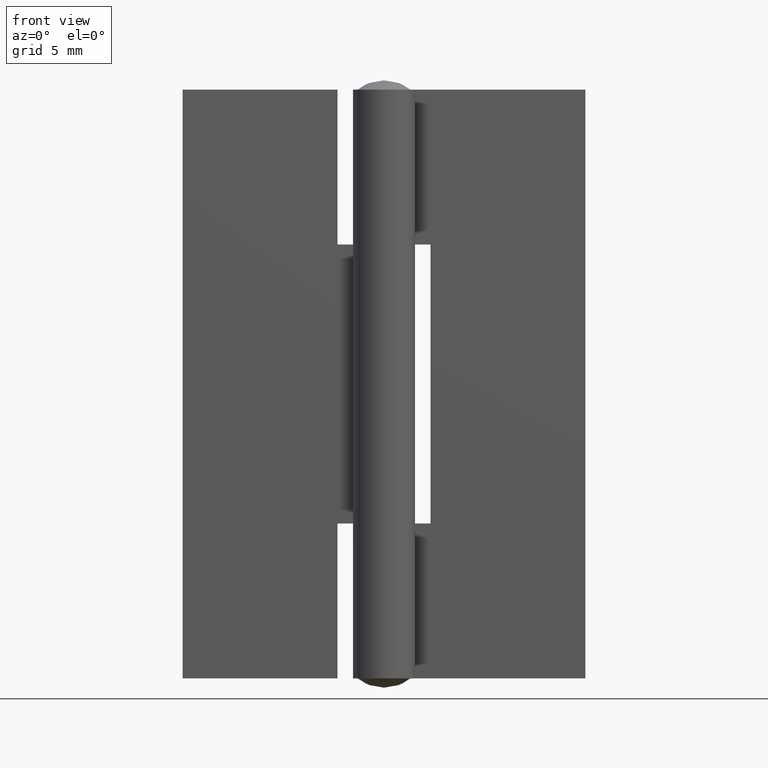
[diagram: clean part render]
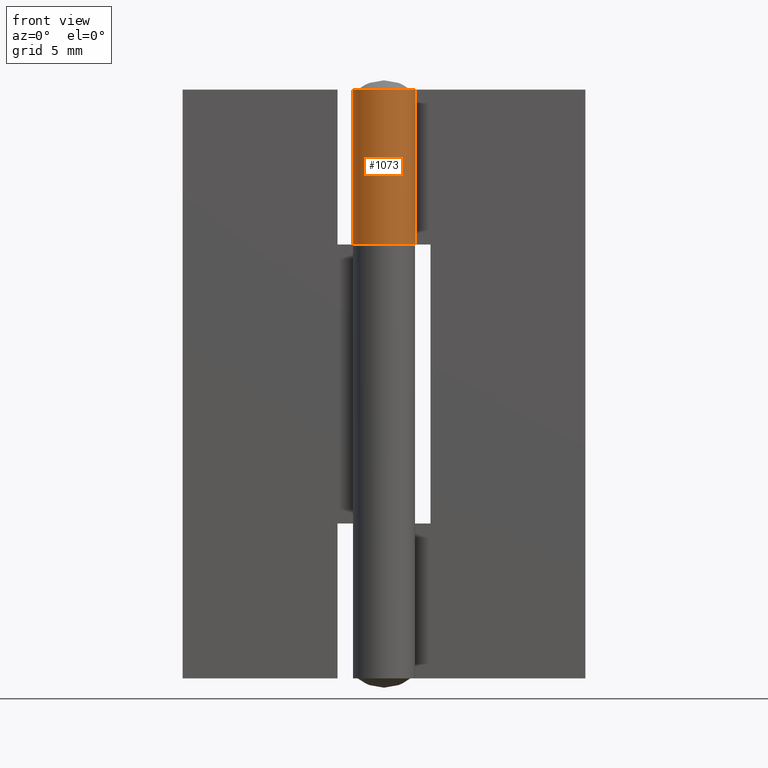
[diagram: same view with one face highlighted and labeled with its STEP entity id]
A machine part, front view. The second image highlights one B-rep face of the part: STEP entity #1073.
In plain terms, the highlighted face is a freeform B-spline surface patch.
Its self-contained STEP definition (entity closure, byte-faithful):
#638=CARTESIAN_POINT('',(1.636306817195360,1.150000000000020,28.0));
#639=VERTEX_POINT('',#638);
#645=CARTESIAN_POINT('',(1.421085E-014,1.999999000000000,28.0));
#646=VERTEX_POINT('',#645);
#647=CARTESIAN_POINT('',(1.636306817195360,1.150000000000020,28.0));
#648=CARTESIAN_POINT('',(1.700098871029820,1.059242517422685,28.0));
#649=CARTESIAN_POINT('',(1.819562329842709,0.855067502385686,28.000000000000021));
#650=CARTESIAN_POINT('',(1.939811513093784,0.528292118011160,28.0));
#651=CARTESIAN_POINT('',(1.999428515758027,0.192616748862859,28.000000000000089));
#652=CARTESIAN_POINT('',(2.004197462915132,-0.134226639090222,27.999999999999940));
#653=CARTESIAN_POINT('',(1.959466290889352,-0.437080124492117,28.0));
#654=CARTESIAN_POINT('',(1.861706997454710,-0.756009934135546,27.999999999999989));
#655=CARTESIAN_POINT('',(1.684074820366631,-1.111216419699059,28.000000000000171));
#656=CARTESIAN_POINT('',(1.384919680122278,-1.471753422193188,27.999999999999432));
#657=CARTESIAN_POINT('',(1.012086540160764,-1.742715949835904,28.000000000000309));
#658=CARTESIAN_POINT('',(0.655246808072034,-1.900058871851757,27.999999999999730));
#659=CARTESIAN_POINT('',(0.338028714950844,-1.978932295261450,28.000000000000430));
#660=CARTESIAN_POINT('',(-0.008079619499464,-2.011212491490266,27.999999999999361));
#661=CARTESIAN_POINT('',(-0.334601574675453,-1.982036787474248,28.000000000000728));
#662=CARTESIAN_POINT('',(-0.683641256408447,-1.888924302057103,28.000000000000121));
#663=CARTESIAN_POINT('',(-0.976022984763396,-1.757680303406933,27.999999999999151));
#664=CARTESIAN_POINT('',(-1.320763776154029,-1.522552334776459,28.000000000000838));
#665=CARTESIAN_POINT('',(-1.595199724113208,-1.233159531086430,28.000000000000611));
#666=CARTESIAN_POINT('',(-1.838648222633195,-0.827448205905518,27.999999999994049));
#667=CARTESIAN_POINT('',(-1.984864688963399,-0.389391490444406,28.000000000017199));
#668=CARTESIAN_POINT('',(-2.012121803520687,0.050004093493665,27.999999999974492));
#669=CARTESIAN_POINT('',(-1.966019678276890,0.401413927589260,28.000000000025679));
#670=CARTESIAN_POINT('',(-1.887932771819517,0.682753456424338,27.999999999982670));
#671=CARTESIAN_POINT('',(-1.748507748276050,0.993695162910194,28.000000000009859));
#672=CARTESIAN_POINT('',(-1.507184552118199,1.343845719804509,27.999999999994191));
#673=CARTESIAN_POINT('',(-1.193791095318865,1.623193298435637,28.000000000001950));
#674=CARTESIAN_POINT('',(-0.843838343837725,1.823511237038499,27.999999999999719));
#675=CARTESIAN_POINT('',(-0.471458617274665,1.960986226775956,27.999999999999979));
#676=CARTESIAN_POINT('',(-0.173344406309737,2.000055084959348,28.000000000000011));
#677=CARTESIAN_POINT('',(1.421085E-014,1.999999000000000,28.0));
#678=B_SPLINE_CURVE_WITH_KNOTS('',3,(#647,#648,#649,#650,#651,#652,#653,#654,#655,#656,#657,#658,#659,#660,#661,#662,#663,#664,#665,#666,#667,#668,#669,#670,#671,#672,#673,#674,#675,#676,#677),.UNSPECIFIED.,.F.,.U.,(4,1,1,1,1,1,1,1,1,1,1,1,1,1,1,1,1,1,1,1,1,1,1,1,1,1,1,1,4),(-0.000000676015812,0.332802891309425,0.707217021700098,1.040037069597879,1.352055658472533,1.684876750102999,1.955285770306663,2.350503492665732,2.870513334792860,3.348924350227775,3.723346368031387,4.035365326426504,4.326582571116299,4.763406891973150,5.013016721532046,5.408197475050280,5.720214293218197,6.261047023127185,6.593867780118599,7.134696135361646,7.633928079058331,7.904345541654216,8.195524493886641,8.507545724252442,8.923555522255906,9.464387168983574,9.755605372172248,10.130014291143160,10.650034251854811),.UNSPECIFIED.);
#679=EDGE_CURVE('',#639,#646,#678,.T.);
#796=CARTESIAN_POINT('',(1.384347E-014,2.0,38.0));
#797=VERTEX_POINT('',#796);
#805=CARTESIAN_POINT('',(1.636306817195360,1.150000000000020,38.0));
#806=VERTEX_POINT('',#805);
#807=CARTESIAN_POINT('',(1.636306817195360,1.150000000000020,38.0));
#808=CARTESIAN_POINT('',(1.700099051704405,1.059242488043333,37.999999999999993));
#809=CARTESIAN_POINT('',(1.819561502566567,0.855067456348143,38.000000000000021));
#810=CARTESIAN_POINT('',(1.939812897425228,0.528292239001284,38.000000000000021));
#811=CARTESIAN_POINT('',(1.995772453393623,0.213168666359286,37.999999999999929));
#812=CARTESIAN_POINT('',(2.006067736245001,-0.127094994529120,38.000000000000028));
#813=CARTESIAN_POINT('',(1.957887207182054,-0.465458166467293,37.999999999999993));
#814=CARTESIAN_POINT('',(1.827931762193717,-0.840158687610832,38.000000000000007));
#815=CARTESIAN_POINT('',(1.640554492245040,-1.166641407426428,37.999999999999872));
#816=CARTESIAN_POINT('',(1.365467393878495,-1.481151157885997,38.000000000000817));
#817=CARTESIAN_POINT('',(1.052970616995472,-1.715847862293794,37.999999999997719));
#818=CARTESIAN_POINT('',(0.739176453427083,-1.866053028629438,38.000000000003297));
#819=CARTESIAN_POINT('',(0.414065663593844,-1.966979294316854,37.999999999997918));
#820=CARTESIAN_POINT('',(0.061311335501344,-2.012856711518418,38.000000000000632));
#821=CARTESIAN_POINT('',(-0.299847026570894,-1.986251767850585,37.999999999999957));
#822=CARTESIAN_POINT('',(-0.631026290986194,-1.907064239380378,38.000000000000007));
#823=CARTESIAN_POINT('',(-0.945868117882092,-1.775489201796171,38.0));
#824=CARTESIAN_POINT('',(-1.242333521689226,-1.579927429236638,38.000000000000007));
#825=CARTESIAN_POINT('',(-1.510863640644634,-1.327412427248362,38.000000000000007));
#826=CARTESIAN_POINT('',(-1.725626267319272,-1.035373989747894,38.000000000000007));
#827=CARTESIAN_POINT('',(-1.904158524095559,-0.657801528974142,38.000000000000007));
#828=CARTESIAN_POINT('',(-2.010936861607717,-0.209437369750422,37.999999999999993));
#829=CARTESIAN_POINT('',(-2.000564353053195,0.280262860612667,38.000000000000007));
#830=CARTESIAN_POINT('',(-1.892512848197678,0.677345575245959,37.999999999999979));
#831=CARTESIAN_POINT('',(-1.736633663515559,1.010915459221101,38.000000000000028));
#832=CARTESIAN_POINT('',(-1.507186370876446,1.343839590152923,37.999999999999993));
#833=CARTESIAN_POINT('',(-1.146783647179938,1.665115523568650,37.999999999999993));
#834=CARTESIAN_POINT('',(-0.736499112670787,1.875129730512884,38.000000000000021));
#835=CARTESIAN_POINT('',(-0.353601092517284,1.979100678799960,37.999999999999993));
#836=CARTESIAN_POINT('',(-0.117865842873502,2.000010503602745,38.000000000000043));
#837=CARTESIAN_POINT('',(1.384347E-014,2.0,38.0));
#838=B_SPLINE_CURVE_WITH_KNOTS('',3,(#807,#808,#809,#810,#811,#812,#813,#814,#815,#816,#817,#818,#819,#820,#821,#822,#823,#824,#825,#826,#827,#828,#829,#830,#831,#832,#833,#834,#835,#836,#837),.UNSPECIFIED.,.F.,.U.,(4,1,1,1,1,1,1,1,1,1,1,1,1,1,1,1,1,1,1,1,1,1,1,1,1,1,1,1,4),(0.000000210224265,0.332803749773927,0.707217848916232,1.040037869037098,1.289653366305990,1.726479115179030,2.059296906810062,2.475323945903824,2.849694740728114,3.307326115059665,3.640144730539506,3.889758910882598,4.326583096262391,4.700992997388185,4.971421658205663,5.345796045071758,5.720214702052406,6.032238876460996,6.448258785093046,6.801878988401137,7.280304801097683,7.821126223590865,8.257931014868328,8.507545900457171,8.923555663740618,9.464387265330608,9.942813078190437,10.296436605244830,10.650034254418530),.UNSPECIFIED.);
#839=EDGE_CURVE('',#806,#797,#838,.T.);
#1027=CARTESIAN_POINT('',(1.384347E-014,2.0,38.0));
#1028=CARTESIAN_POINT('',(1.421085E-014,1.999999000000000,28.0));
#1029=QUASI_UNIFORM_CURVE('',1,(#1027,#1028),.UNSPECIFIED.,.F.,.U.);
#1030=EDGE_CURVE('',#797,#646,#1029,.T.);
#1041=CARTESIAN_POINT('',(0.083764134997628,1.998245122523285,38.250000000000007));
#1042=CARTESIAN_POINT('',(0.083764134997628,1.998245122523285,27.743749999999999));
#1043=CARTESIAN_POINT('',(-2.473872988646684,2.105458326191372,38.250000000000000));
#1044=CARTESIAN_POINT('',(-2.473872988646684,2.105458326191372,27.743749999999995));
#1045=CARTESIAN_POINT('',(-1.959153080758074,-0.402143265710233,38.250000000000007));
#1046=CARTESIAN_POINT('',(-1.959153080758074,-0.402143265710233,27.743749999999999));
#1047=CARTESIAN_POINT('',(-1.444433172869463,-2.909744857611838,38.250000000000000));
#1048=CARTESIAN_POINT('',(-1.444433172869463,-2.909744857611838,27.743749999999995));
#1049=CARTESIAN_POINT('',(0.864159919136251,-1.803670600236764,38.250000000000007));
#1050=CARTESIAN_POINT('',(0.864159919136251,-1.803670600236764,27.743749999999999));
#1051=CARTESIAN_POINT('',(3.172753011141965,-0.697596342861690,38.250000000000000));
#1052=CARTESIAN_POINT('',(3.172753011141965,-0.697596342861690,27.743749999999995));
#1053=CARTESIAN_POINT('',(1.541034669280714,1.274838087003570,38.250000000000007));
#1054=CARTESIAN_POINT('',(1.541034669280714,1.274838087003570,27.743749999999999));
#1062=(BOUNDED_SURFACE()B_SPLINE_SURFACE(1,2,((#1041,#1043,#1045,#1047,#1049,#1051,#1053),(#1042,#1044,#1046,#1048,#1050,#1052,#1054)),.UNSPECIFIED.,.F.,.F.,.U.)B_SPLINE_SURFACE_WITH_KNOTS((2,2),(3,2,2,3),(0.0,10.506250000000010),(0.0,3.901860708526890,7.803721417053780,11.705582125580669),.UNSPECIFIED.)GEOMETRIC_REPRESENTATION_ITEM()RATIONAL_B_SPLINE_SURFACE(((1.0,0.615661475325658,1.0,0.615661475325658,1.0,0.615661475325658,1.0),(1.0,0.615661475325658,1.0,0.615661475325658,1.0,0.615661475325658,1.0)))REPRESENTATION_ITEM('')SURFACE());
#1063=ORIENTED_EDGE('',*,*,#679,.F.);
#1064=CARTESIAN_POINT('',(1.636306817195360,1.150000000000020,38.0));
#1065=CARTESIAN_POINT('',(1.636306817195360,1.150000000000020,28.0));
#1066=QUASI_UNIFORM_CURVE('',1,(#1064,#1065),.UNSPECIFIED.,.F.,.U.);
#1067=EDGE_CURVE('',#806,#639,#1066,.T.);
#1068=ORIENTED_EDGE('',*,*,#1067,.F.);
#1069=ORIENTED_EDGE('',*,*,#839,.T.);
#1070=ORIENTED_EDGE('',*,*,#1030,.T.);
#1071=EDGE_LOOP('',(#1063,#1068,#1069,#1070));
#1072=FACE_OUTER_BOUND('',#1071,.T.);
#1073=ADVANCED_FACE('',(#1072),#1062,.T.);